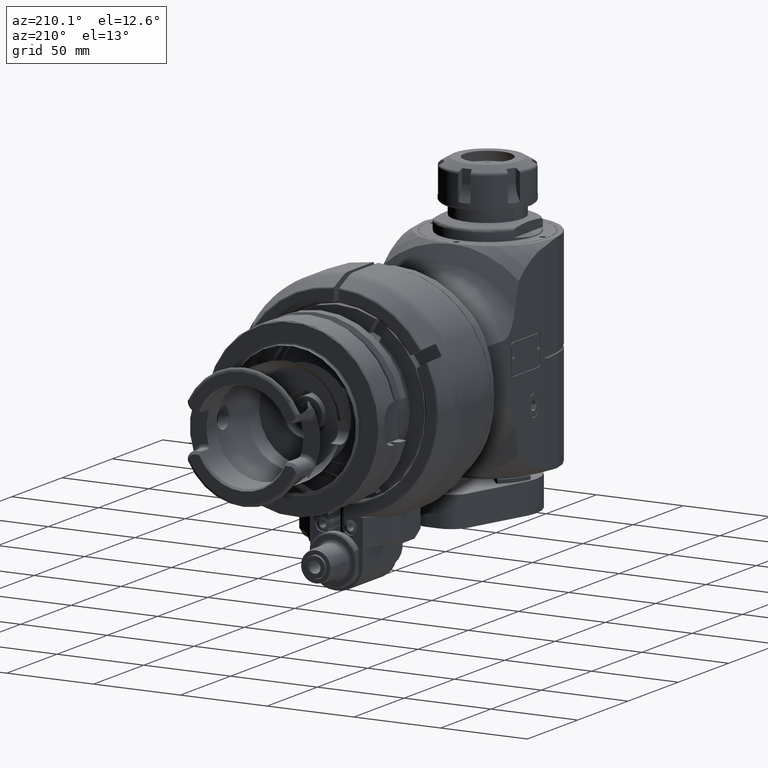
[diagram: clean part render]
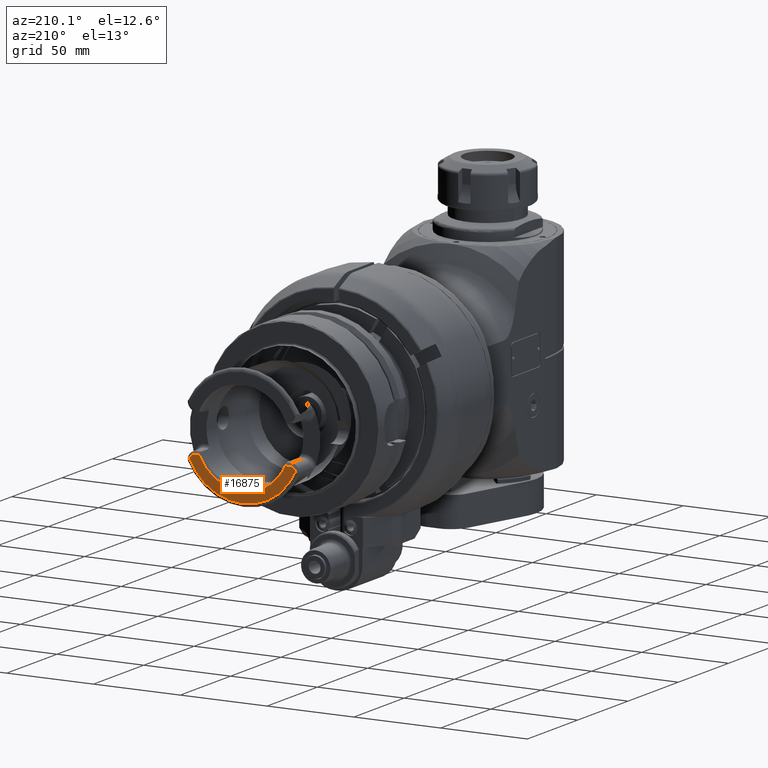
[diagram: same view with one face highlighted and labeled with its STEP entity id]
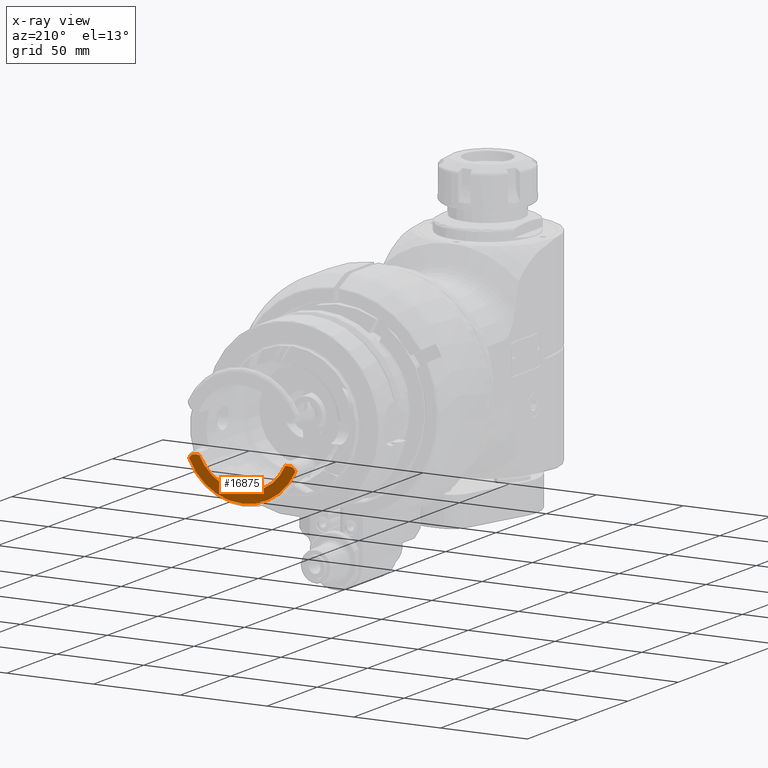
[diagram: x-ray of the same camera — body ghosted, the highlighted face saturated]
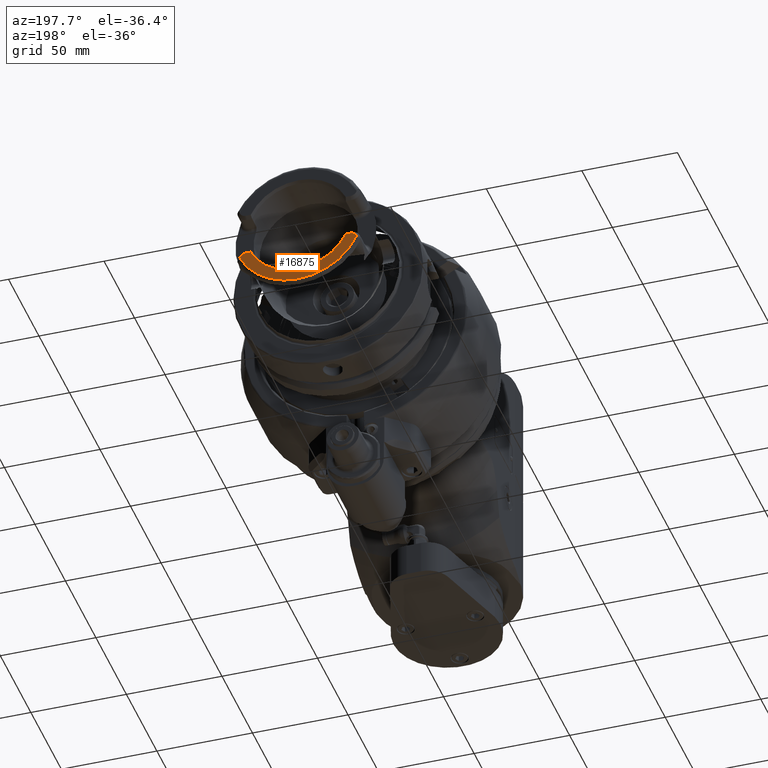
[diagram: same view with one face highlighted and labeled with its STEP entity id]
A machine part, auxiliary view. The second image highlights one B-rep face of the part: STEP entity #16875.
The next image is the same camera in x-ray: the body ghosted, the highlighted face saturated — about 0% of this face is hidden behind the body in this view.
A second angle (auxiliary view) of the same face is appended — the face is thin or edge-on in the first view.
In plain terms, the highlighted planar face has unit normal (0, -1, -0).
Its self-contained STEP definition (entity closure, byte-faithful):
#840=PLANE('',#18714);
#2179=LINE('',#34503,#3360);
#2205=LINE('',#34873,#3386);
#3360=VECTOR('',#23296,2.542208185232);
#3386=VECTOR('',#23404,2.542208185249);
#4213=CIRCLE('',#18666,33.60023188637);
#4216=CIRCLE('',#18672,3.380000000015);
#4234=CIRCLE('',#18713,3.379999999978);
#4235=CIRCLE('',#18715,27.36602540378);
#5134=FACE_OUTER_BOUND('',#6199,.T.);
#6199=EDGE_LOOP('',(#15586,#15587,#15588,#15589,#15590,#15591));
#8181=VERTEX_POINT('',#34345);
#8182=VERTEX_POINT('',#34377);
#8187=VERTEX_POINT('',#34498);
#8188=VERTEX_POINT('',#34502);
#8212=VERTEX_POINT('',#34868);
#8213=VERTEX_POINT('',#34872);
#10624=EDGE_CURVE('',#8182,#8181,#4213,.T.);
#10632=EDGE_CURVE('',#8187,#8182,#4216,.T.);
#10634=EDGE_CURVE('',#8187,#8188,#2179,.T.);
#10684=EDGE_CURVE('',#8181,#8212,#4234,.T.);
#10686=EDGE_CURVE('',#8213,#8212,#2205,.T.);
#10687=EDGE_CURVE('',#8213,#8188,#4235,.T.);
#15586=ORIENTED_EDGE('',*,*,#10624,.T.);
#15587=ORIENTED_EDGE('',*,*,#10684,.T.);
#15588=ORIENTED_EDGE('',*,*,#10686,.F.);
#15589=ORIENTED_EDGE('',*,*,#10687,.T.);
#15590=ORIENTED_EDGE('',*,*,#10634,.F.);
#15591=ORIENTED_EDGE('',*,*,#10632,.T.);
#16875=ADVANCED_FACE('',(#5134),#840,.F.);
#18666=AXIS2_PLACEMENT_3D('',#34378,#23277,#23278);
#18672=AXIS2_PLACEMENT_3D('',#34499,#23291,#23292);
#18713=AXIS2_PLACEMENT_3D('',#34869,#23399,#23400);
#18714=AXIS2_PLACEMENT_3D('',#34871,#23402,#23403);
#18715=AXIS2_PLACEMENT_3D('',#34874,#23405,#23406);
#23277=DIRECTION('center_axis',(0.,1.,3.550150040606E-13));
#23278=DIRECTION('ref_axis',(0.910622206402583,1.46706357153901E-13,-0.413239878528792));
#23291=DIRECTION('center_axis',(0.,1.,4.917917963465E-14));
#23292=DIRECTION('ref_axis',(5.209245263922E-11,-4.917917963465E-14,1.));
#23296=DIRECTION('',(-1.,3.443418424745E-12,-2.140257839893E-12));
#23399=DIRECTION('center_axis',(0.,1.,4.898335409187E-14));
#23400=DIRECTION('ref_axis',(-0.954768430765971,-1.45652185514829E-14,0.297350371805191));
#23402=DIRECTION('center_axis',(0.,-1.,-3.552713678797E-13));
#23403=DIRECTION('ref_axis',(0.,3.552713678797E-13,-1.));
#23404=DIRECTION('',(-1.,-8.720345361308E-13,2.140956585501E-12));
#23405=DIRECTION('center_axis',(0.,-1.,-3.552713678797E-13));
#23406=DIRECTION('ref_axis',(-0.90724873080683,1.49425186302174E-13,-0.420594508344314));
#34345=CARTESIAN_POINT('',(-30.59711729598,135.9999997692,-13.88495574328));
#34377=CARTESIAN_POINT('',(30.59711729607,135.9999997692,-13.88495574344));
#34378=CARTESIAN_POINT('Origin',(0.,135.9999997692,3.452801632128E-11));
#34498=CARTESIAN_POINT('',(27.37000000006,135.9999997692,-11.50999999996));
#34499=CARTESIAN_POINT('Origin',(27.37,135.9999997692,-14.88999999998));
#34502=CARTESIAN_POINT('',(24.82779181482,135.9999997692,-11.50999999997));
#34503=CARTESIAN_POINT('',(27.37000000006,135.9999997692,-11.50999999996));
#34868=CARTESIAN_POINT('',(-27.37000000006,135.9999997692,-11.51));
#34869=CARTESIAN_POINT('Origin',(-27.37,135.9999997693,-14.88999999998));
#34871=CARTESIAN_POINT('Origin',(60.0000024,135.9999997692,61.99362100003));
#34872=CARTESIAN_POINT('',(-24.82779181481,135.9999997692,-11.51000000001));
#34873=CARTESIAN_POINT('',(-24.82779181481,135.9999997692,-11.51));
#34874=CARTESIAN_POINT('Origin',(0.,135.9999997692,3.454083451223E-11));